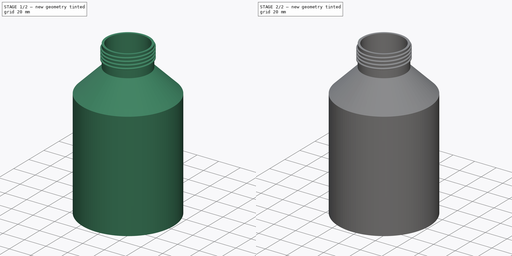
[diagram: build sequence overview — one tinted view per stage of 2, left to right]
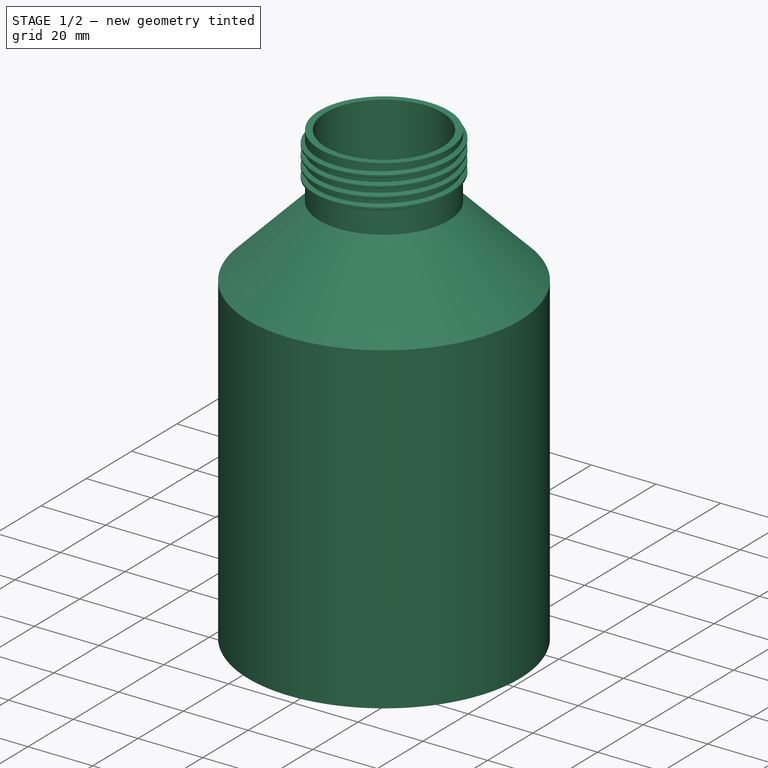
[diagram: stage 1 of 2 — iso view after this stage's code; geometry added in this stage tinted green]
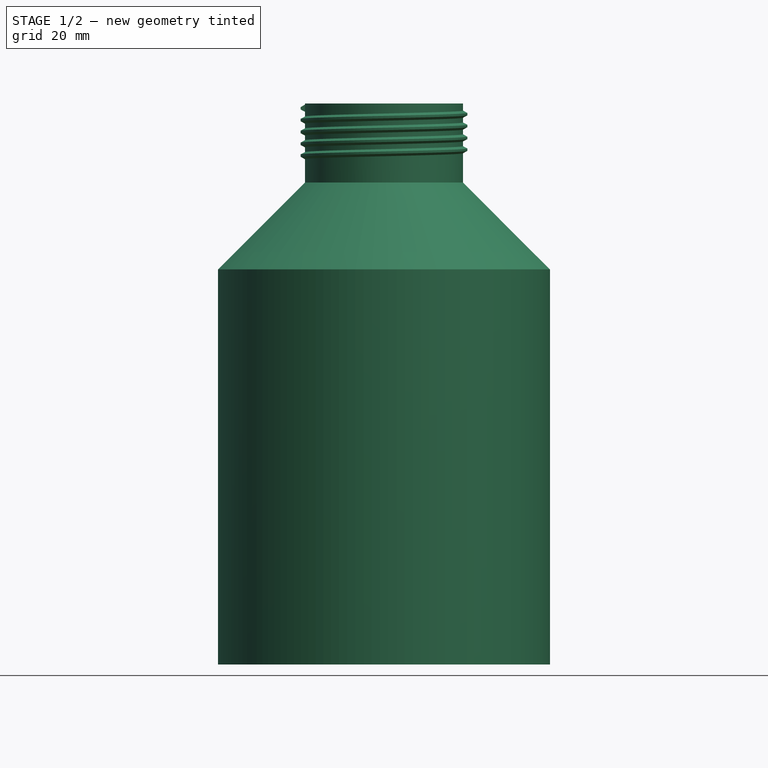
[diagram: stage 1 of 2 — front view after this stage's code; geometry added in this stage tinted green]
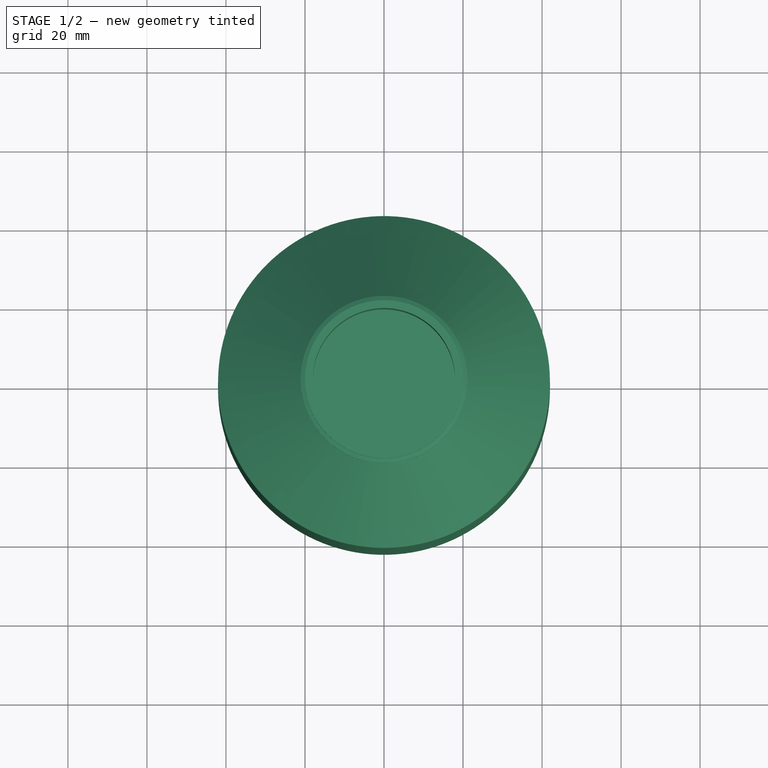
[diagram: stage 1 of 2 — top view after this stage's code; geometry added in this stage tinted green]
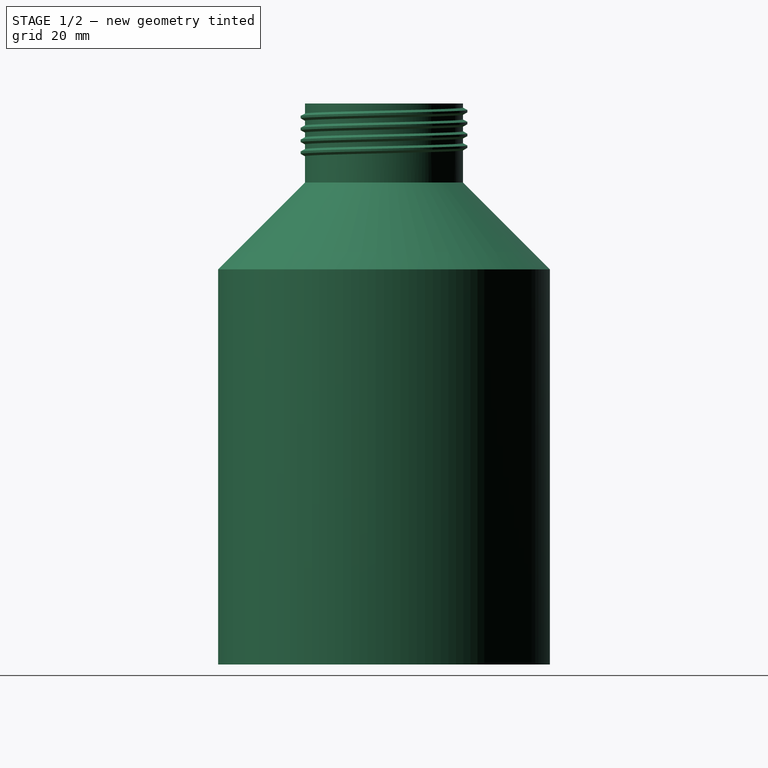
[diagram: stage 1 of 2 — right view after this stage's code; geometry added in this stage tinted green]
FCSTD DOCUMENT  (FreeCAD 1.0R39319 (Git))
Label: Bottle
License: All rights reserved
LicenseURL: https://en.wikipedia.org/wiki/All_rights_reserved
objects: Sketcher::SketchObject×4, PartDesign::AdditivePipe×2, PartDesign::Revolution×1, PartDesign::AdditiveHelix×1, PartDesign::Body×1
note: 21 computed .brp shape members not serialized (recipe doc carries the construction recipe); baked Part::Feature solids carry a one-line shape summary decoded from their .brp

FEATURE [Sketcher::SketchObject] Sketch
  ArcFitTolerance = 1e-06
  AttachmentSupport = -> [XZ_Plane]
  FullyConstrained = true
  MakeInternals = false
  MapMode = 5
  Placement = pos=(0,0,0) rot=(1,0,0;1.5708rad)
  sketch-geometry (10):
    g0: LineSegment StartX=0 StartY=0 StartZ=0 EndX=-42 EndY=0 EndZ=0
    g1: LineSegment StartX=-42 StartY=0 StartZ=0 EndX=-42 EndY=100 EndZ=0
    g2: LineSegment StartX=-42 StartY=100 StartZ=0 EndX=-20 EndY=122 EndZ=0
    g3: LineSegment StartX=-20 StartY=142 StartZ=0 EndX=-18 EndY=142 EndZ=0
    g4: LineSegment StartX=-18 StartY=142 StartZ=0 EndX=-18 EndY=121.172 EndZ=0
    g5: LineSegment StartX=-18 StartY=121.172 StartZ=0 EndX=-40 EndY=99.1716 EndZ=0
    g6: LineSegment StartX=-40 StartY=99.1716 StartZ=0 EndX=-40 EndY=2 EndZ=0
    g7: LineSegment StartX=-40 StartY=2 StartZ=0 EndX=0 EndY=2 EndZ=0
    g8: LineSegment StartX=0 StartY=2 StartZ=0 EndX=0 EndY=0 EndZ=0
    g9: LineSegment StartX=-20 StartY=142 StartZ=0 EndX=-20 EndY=122 EndZ=0
  constraints (29):
    c: Coincident(g-1,g0)
    c: PointOnObject(g0,g-1)
    c: Coincident(g0,g1)
    c: Vertical(g1)
    c: Horizontal(g3)
    c: Vertical(g4)
    c: Coincident(g5,g6)
    c: Vertical(g6)
    c: Coincident(g6,g7)
    c: Horizontal(g7)
    c: Coincident(g7,g8)
    c: Coincident(g8,g0)
    c: Perpendicular(g7,g8)
    c: DistanceY(g0,g7) = 2
    c: DistanceX(g7,g7) = 40
    c: DistanceX(g0,g0) = 42
    c: Equal(g2,g5)
    c: DistanceX(g3,g3) = 2
    c: DistanceY(g2,g2) = 22
    c: Coincident(g1,g2)
    c: DistanceX(g2,g2) = 22
    c: Distance(g5,g2) = 2
    c: DistanceY(g1,g1) = 100
    c: Coincident(g4,g3)
    c: Coincident(g9,g2)
    c: Vertical(g9)
    c: Coincident(g5,g4)
    c: Coincident(g9,g3)
    c: DistanceY(g9,g9) = 20
FEATURE [PartDesign::Revolution] Revolution
  Angle = 360
  Angle2 = 60
  Axis = (0,2e-16,1)
  Base = (0,0,0)
  Placement = pos=(0,0,0) rot=(1,0,0;1.5708rad)
  Profile = -> Sketch
  ReferenceAxis = -> Sketch [V_Axis]
  Refine = true
  Suppressed = false
  Type = 0
FEATURE [Sketcher::SketchObject] Sketch001
  ArcFitTolerance = 1e-06
  AttachmentSupport = -> [XZ_Plane]
  ExternalGeometry = -> [Sketch]
  FullyConstrained = true
  MakeInternals = false
  MapMode = 5
  Placement = pos=(0,0,0) rot=(1,0,0;1.5708rad)
  sketch-geometry (6):
    g0: LineSegment StartX=-19.9 StartY=141.7 StartZ=0 EndX=-20 EndY=141.7 EndZ=0
    g1: LineSegment StartX=-20 StartY=141.7 StartZ=0 EndX=-21.1 EndY=141.1 EndZ=0
    g2: LineSegment StartX=-21.1 StartY=141.1 StartZ=0 EndX=-21.1 EndY=140.5 EndZ=0
    g3: LineSegment StartX=-21.1 StartY=140.5 StartZ=0 EndX=-20 EndY=139.9 EndZ=0
    g4: LineSegment StartX=-20 StartY=139.9 StartZ=0 EndX=-19.9 EndY=139.9 EndZ=0
    g5: LineSegment StartX=-19.9 StartY=139.9 StartZ=0 EndX=-19.9 EndY=141.7 EndZ=0
  constraints (18):
    c: Coincident(g0,g1)
    c: Coincident(g1,g2)
    c: Vertical(g2)
    c: Coincident(g2,g3)
    c: Coincident(g3,g4)
    c: Coincident(g4,g5)
    c: Coincident(g5,g0)
    c: Vertical(g5)
    c: Horizontal(g0)
    c: Horizontal(g4)
    c: DistanceY(g5,g5) = 1.8
    c: DistanceX(g0,g0) = 0.1
    c: Distance(g1,g5) = 1.2
    c: Distance(g1,g0) = 0.6
    c: DistanceY(g2,g2) = 0.6
    c: Equal(g0,g4)
    c: PointOnObject(g0,g-3)
    c: Distance(g-3,g0) = 0.3
FEATURE [PartDesign::AdditiveHelix] AdditiveHelix
  Angle = 0
  Axis = (0,2e-16,1)
  Base = (0,0,0)
  BaseFeature = -> Revolution
  Growth = 0
  HasBeenEdited = true
  Height = 12
  LeftHanded = false
  Mode = 0
  Outside = false
  Pitch = 3
  Placement = pos=(0,0,0) rot=(1,0,0;1.5708rad)
  Profile = -> Sketch001
  ReferenceAxis = -> Sketch001 [V_Axis]
  Refine = true
  Reversed = true
  Suppressed = false
  Tolerance = 0.1
  Turns = 4
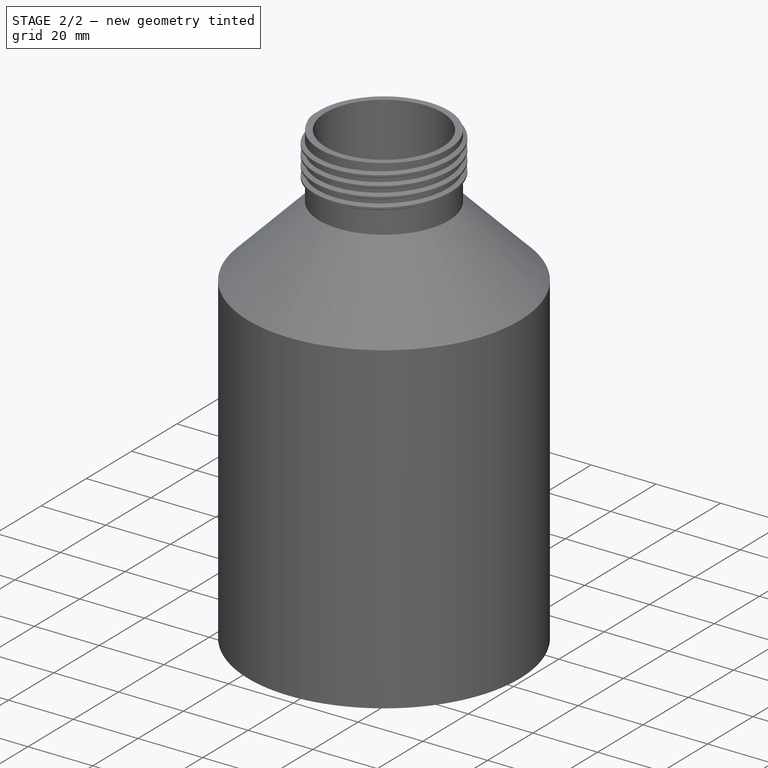
[diagram: stage 2 of 2 — iso view after this stage's code; geometry added in this stage tinted green]
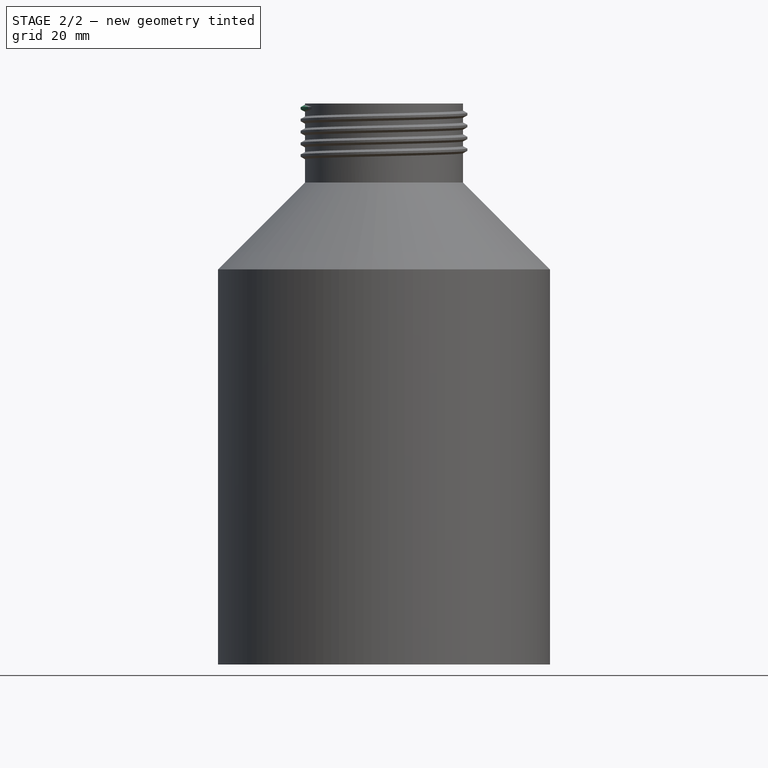
[diagram: stage 2 of 2 — front view after this stage's code; geometry added in this stage tinted green]
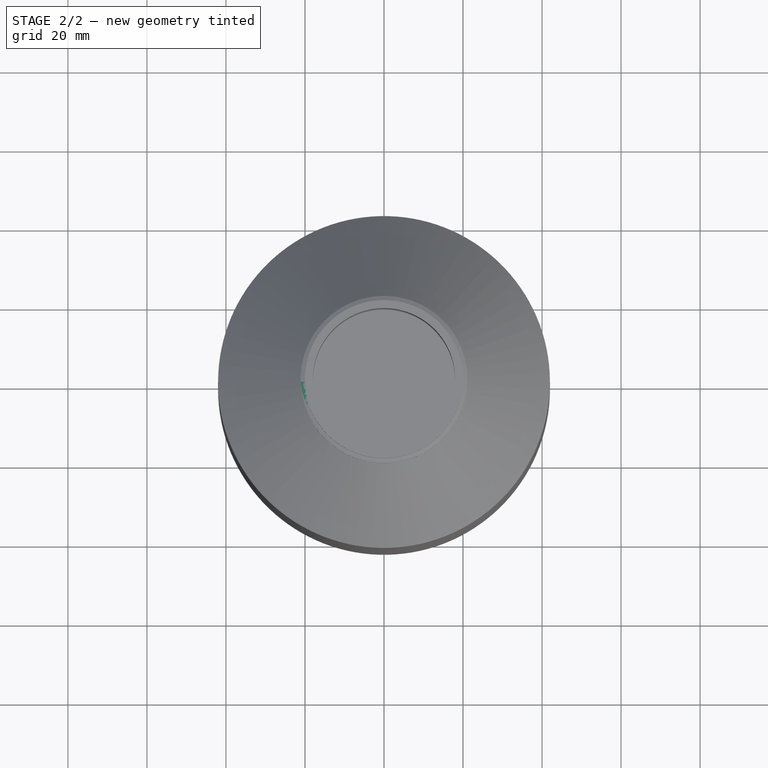
[diagram: stage 2 of 2 — top view after this stage's code; geometry added in this stage tinted green]
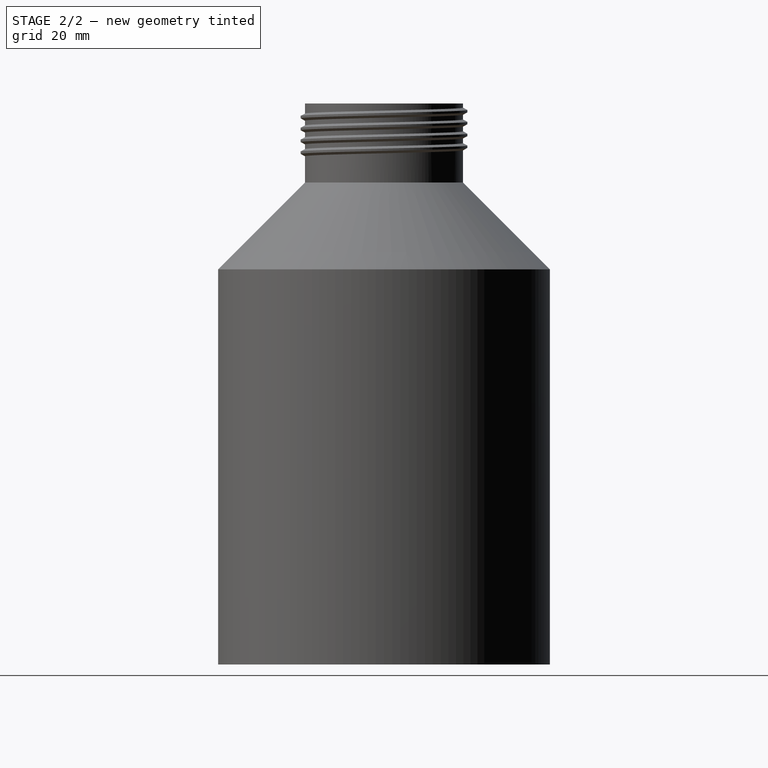
[diagram: stage 2 of 2 — right view after this stage's code; geometry added in this stage tinted green]
FEATURE [Sketcher::SketchObject] Sketch002
  ArcFitTolerance = 1e-06
  AttachmentOffset = pos=(0,0,141.1) rot=(0,0,1;0rad)
  AttachmentSupport = -> [XY_Plane]
  ExternalGeometry = -> [Sketch001]
  FullyConstrained = true
  MakeInternals = false
  MapMode = 5
  Placement = pos=(0,0,141.1) rot=(0,0,1;0rad)
  sketch-geometry (1):
    g0: ArcOfCircle CenterX=-8.1 CenterY=0 CenterZ=0 NormalX=0 NormalY=0 NormalZ=1 AngleXU=0 Radius=13 StartAngle=3.14159 EndAngle=3.83972
  constraints (4):
    c: Coincident(g0,g-3)
    c: PointOnObject(g0,g-1)
    c: DistanceX(g0,g0) = 13
    c: Angle(g0) = 0.698132
FEATURE [PartDesign::AdditivePipe] AdditivePipe
  AuxilleryCurvelinear = true
  AuxillerySpineTangent = false
  BaseFeature = -> AdditiveHelix
  Binormal = (0,0,0)
  Mode = 0
  Placement = pos=(0,0,0) rot=(1,0,0;1.5708rad)
  Profile = -> AdditiveHelix [Face4]
  Refine = true
  Spine = -> Sketch002 [Edge1]
  SpineTangent = false
  Suppressed = false
  Transformation = 0
  Transition = 0
FEATURE [Sketcher::SketchObject] Sketch003
  ArcFitTolerance = 1e-06
  AttachmentOffset = pos=(0,0,129.1) rot=(0,0,1;0rad)
  AttachmentSupport = -> [XY_Plane]
  ExternalGeometry = -> [Sketch001]
  FullyConstrained = true
  MakeInternals = false
  MapMode = 5
  Placement = pos=(0,0,129.1) rot=(0,0,1;0rad)
  sketch-geometry (1):
    g0: ArcOfCircle CenterX=-8.1 CenterY=0 CenterZ=0 NormalX=0 NormalY=0 NormalZ=1 AngleXU=0 Radius=13 StartAngle=2.44346 EndAngle=3.14159
  constraints (4):
    c: PointOnObject(g0,g-1)
    c: Coincident(g-3,g0)
    c: DistanceX(g0,g0) = 13
    c: Angle(g0) = 0.698132
FEATURE [PartDesign::AdditivePipe] AdditivePipe001
  AuxilleryCurvelinear = true
  AuxillerySpineTangent = false
  BaseFeature = -> AdditivePipe
  Binormal = (0,0,0)
  Mode = 0
  Placement = pos=(0,0,0) rot=(1,0,0;1.5708rad)
  Profile = -> AdditivePipe [Face27]
  Refine = true
  Spine = -> Sketch003
  SpineTangent = false
  Suppressed = false
  Transformation = 0
  Transition = 0
FEATURE [PartDesign::Body] Body
  AllowCompound = false
  Group = -> [Sketch,Revolution,Sketch001,AdditiveHelix,Sketch002,AdditivePipe,Sketch003,AdditivePipe001]
  Origin = -> Origin
  Tip = -> AdditivePipe001
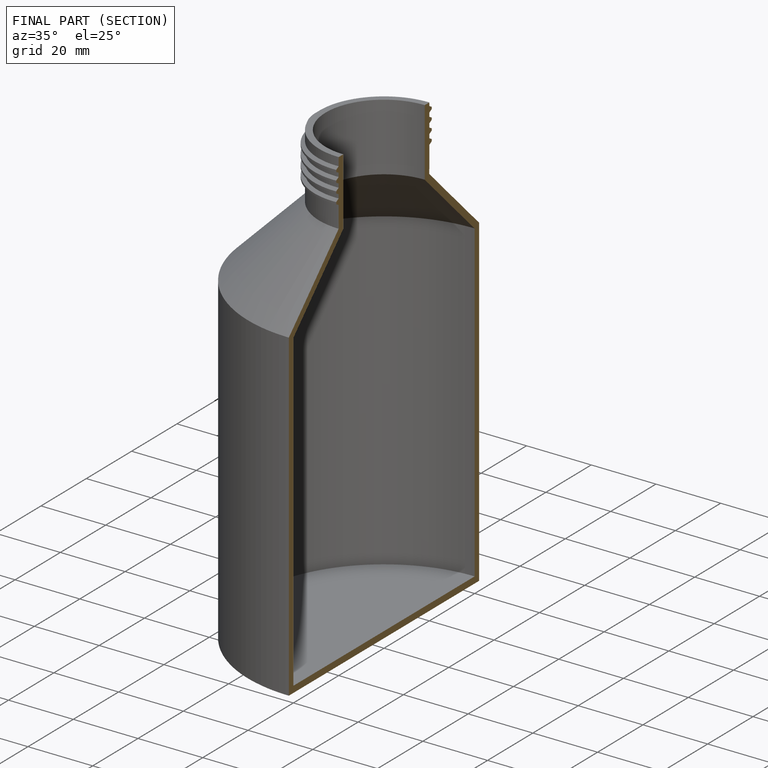
[diagram: finished part — half-section view (interior)]
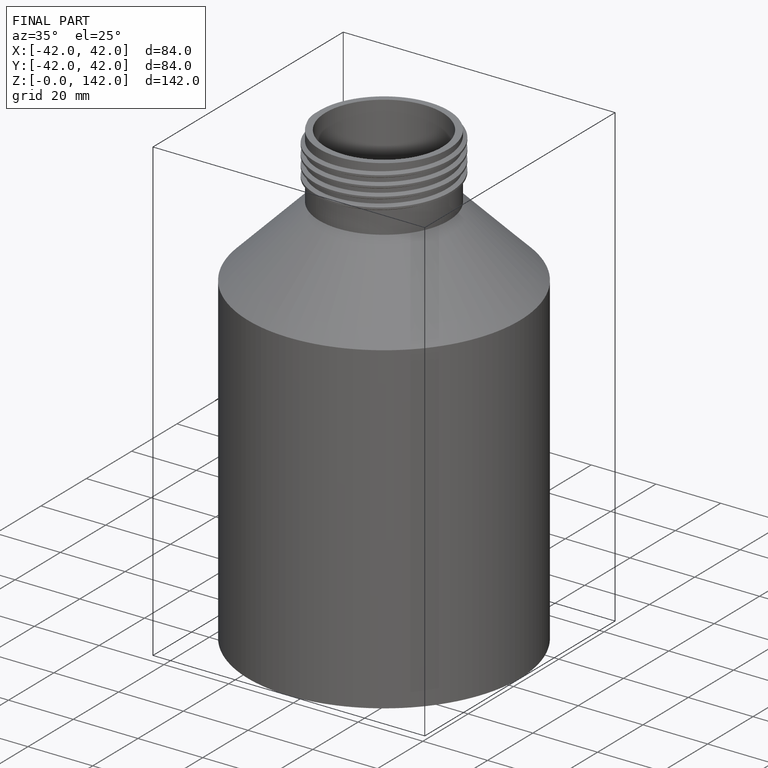
[diagram: finished part — iso view with bounding-box wireframe]
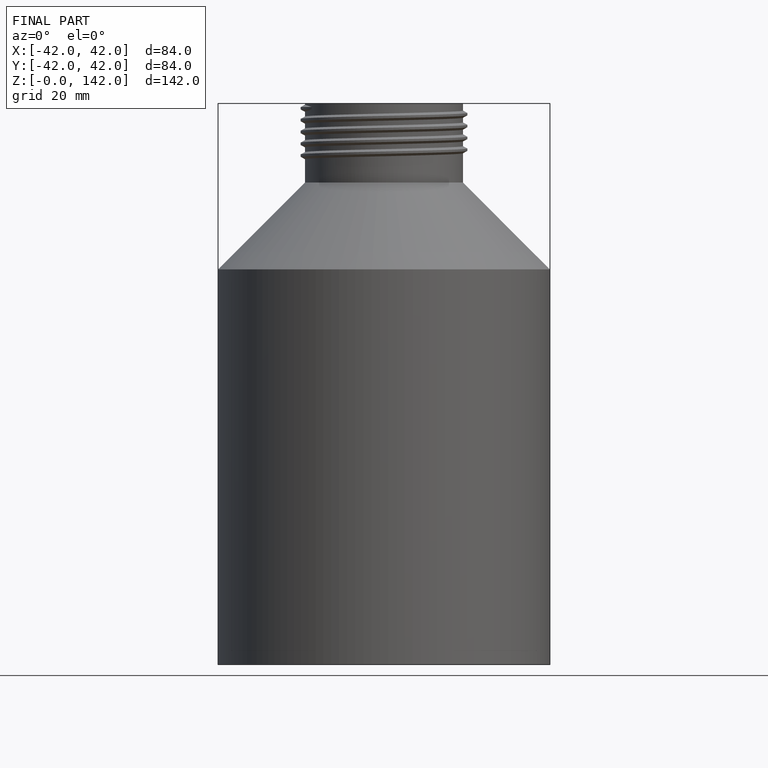
[diagram: finished part — front view with bounding-box wireframe]
